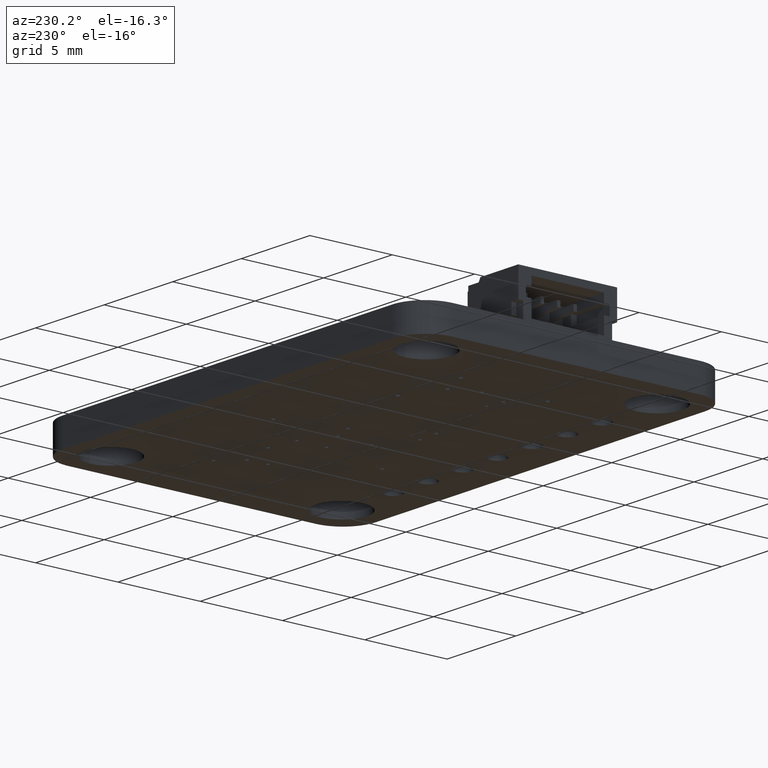
[diagram: clean part render]
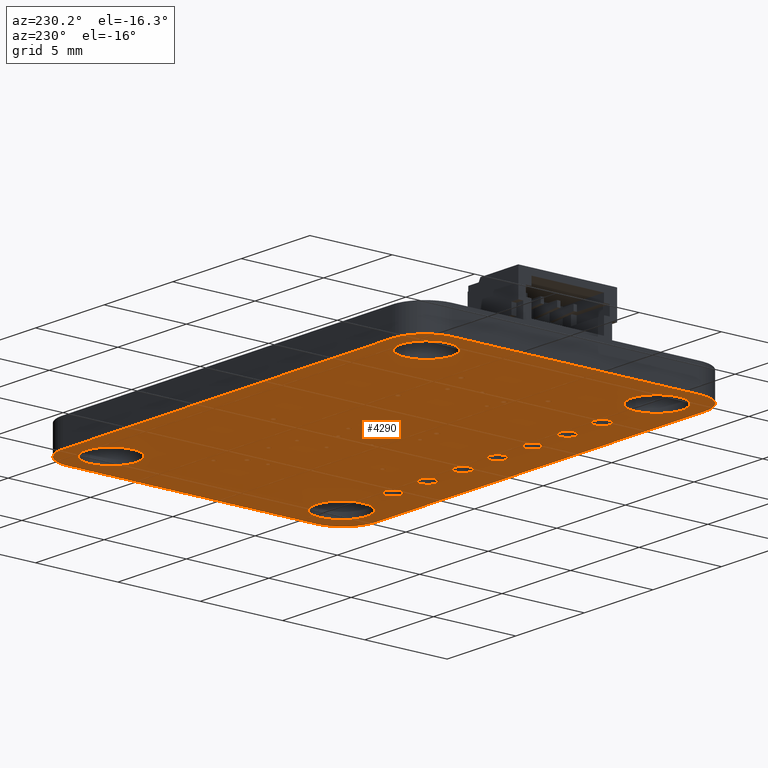
[diagram: same view with one face highlighted and labeled with its STEP entity id]
A machine part, auxiliary view. The second image highlights one B-rep face of the part: STEP entity #4290.
In plain terms, the highlighted planar face has unit normal (0, 0, -1).
Its self-contained STEP definition (entity closure, byte-faithful):
#107 = VERTEX_POINT('',#108);
#108 = CARTESIAN_POINT('',(26.,0.E+000,-0.82));
#125 = VERTEX_POINT('',#126);
#126 = CARTESIAN_POINT('',(2.,0.E+000,-0.82));
#132 = EDGE_CURVE('',#107,#125,#133,.T.);
#133 = LINE('',#134,#135);
#134 = CARTESIAN_POINT('',(26.,0.E+000,-0.82));
#135 = VECTOR('',#136,1.);
#136 = DIRECTION('',(-1.,0.E+000,0.E+000));
#147 = VERTEX_POINT('',#148);
#148 = CARTESIAN_POINT('',(26.20786,-1.01E-002,-0.82));
#163 = EDGE_CURVE('',#147,#107,#164,.T.);
#164 = LINE('',#165,#166);
#165 = CARTESIAN_POINT('',(26.20786,-1.01E-002,-0.82));
#166 = VECTOR('',#167,1.);
#167 = DIRECTION('',(-0.998821572954,4.853313714442E-002,0.E+000));
#187 = VERTEX_POINT('',#188);
#188 = CARTESIAN_POINT('',(1.79214,-1.01E-002,-0.82));
#194 = EDGE_CURVE('',#125,#187,#195,.T.);
#195 = LINE('',#196,#197);
#196 = CARTESIAN_POINT('',(2.,0.E+000,-0.82));
#197 = VECTOR('',#198,1.);
#198 = DIRECTION('',(-0.998821572954,-4.853313714442E-002,0.E+000));
#209 = VERTEX_POINT('',#210);
#210 = CARTESIAN_POINT('',(26.40894,-3.979E-002,-0.82));
#225 = EDGE_CURVE('',#209,#147,#226,.T.);
#226 = LINE('',#227,#228);
#227 = CARTESIAN_POINT('',(26.40894,-3.979E-002,-0.82));
#228 = VECTOR('',#229,1.);
#229 = DIRECTION('',(-0.989274402589,0.146069012397,0.E+000));
#249 = VERTEX_POINT('',#250);
#250 = CARTESIAN_POINT('',(1.59106,-3.979E-002,-0.82));
#256 = EDGE_CURVE('',#187,#249,#257,.T.);
#257 = LINE('',#258,#259);
#258 = CARTESIAN_POINT('',(1.79214,-1.01E-002,-0.82));
#259 = VECTOR('',#260,1.);
#260 = DIRECTION('',(-0.989274402589,-0.146069012397,0.E+000));
#271 = VERTEX_POINT('',#272);
#272 = CARTESIAN_POINT('',(26.60233,-8.817E-002,-0.82));
#287 = EDGE_CURVE('',#271,#209,#288,.T.);
#288 = LINE('',#289,#290);
#289 = CARTESIAN_POINT('',(26.60233,-8.817E-002,-0.82));
#290 = VECTOR('',#291,1.);
#291 = DIRECTION('',(-0.970104127996,0.242689062063,0.E+000));
#311 = VERTEX_POINT('',#312);
#312 = CARTESIAN_POINT('',(1.39767,-8.817E-002,-0.82));
#318 = EDGE_CURVE('',#249,#311,#319,.T.);
#319 = LINE('',#320,#321);
#320 = CARTESIAN_POINT('',(1.59106,-3.979E-002,-0.82));
#321 = VECTOR('',#322,1.);
#322 = DIRECTION('',(-0.970104127996,-0.242689062063,0.E+000));
#333 = VERTEX_POINT('',#334);
#334 = CARTESIAN_POINT('',(26.78711,-0.1543,-0.82));
#349 = EDGE_CURVE('',#333,#271,#350,.T.);
#350 = LINE('',#351,#352);
#351 = CARTESIAN_POINT('',(26.78711,-0.1543,-0.82));
#352 = VECTOR('',#353,1.);
#353 = DIRECTION('',(-0.941520370828,0.336956067339,0.E+000));
#373 = VERTEX_POINT('',#374);
#374 = CARTESIAN_POINT('',(1.21289,-0.1543,-0.82));
#380 = EDGE_CURVE('',#311,#373,#381,.T.);
#381 = LINE('',#382,#383);
#382 = CARTESIAN_POINT('',(1.39767,-8.817E-002,-0.82));
#383 = VECTOR('',#384,1.);
#384 = DIRECTION('',(-0.941520370828,-0.336956067339,0.E+000));
#395 = VERTEX_POINT('',#396);
#396 = CARTESIAN_POINT('',(26.96237,-0.23727,-0.82));
#411 = EDGE_CURVE('',#395,#333,#412,.T.);
#412 = LINE('',#413,#414);
#413 = CARTESIAN_POINT('',(26.96237,-0.23727,-0.82));
#414 = VECTOR('',#415,1.);
#415 = DIRECTION('',(-0.90383337441,0.42788460045,0.E+000));
#435 = VERTEX_POINT('',#436);
#436 = CARTESIAN_POINT('',(1.03763,-0.23727,-0.82));
#442 = EDGE_CURVE('',#373,#435,#443,.T.);
#443 = LINE('',#444,#445);
#444 = CARTESIAN_POINT('',(1.21289,-0.1543,-0.82));
#445 = VECTOR('',#446,1.);
#446 = DIRECTION('',(-0.90383337441,-0.42788460045,0.E+000));
#457 = VERTEX_POINT('',#458);
#458 = CARTESIAN_POINT('',(27.1272,-0.33618,-0.82));
#473 = EDGE_CURVE('',#457,#395,#474,.T.);
#474 = LINE('',#475,#476);
#475 = CARTESIAN_POINT('',(27.1272,-0.33618,-0.82));
#476 = VECTOR('',#477,1.);
#477 = DIRECTION('',(-0.857465383851,0.514541655746,0.E+000));
#497 = VERTEX_POINT('',#498);
#498 = CARTESIAN_POINT('',(0.8728,-0.33618,-0.82));
#504 = EDGE_CURVE('',#435,#497,#505,.T.);
#505 = LINE('',#506,#507);
#506 = CARTESIAN_POINT('',(1.03763,-0.23727,-0.82));
#507 = VECTOR('',#508,1.);
#508 = DIRECTION('',(-0.857465383851,-0.514541655746,0.E+000));
#519 = VERTEX_POINT('',#520);
#520 = CARTESIAN_POINT('',(27.28067,-0.4501,-0.82));
#535 = EDGE_CURVE('',#519,#457,#536,.T.);
#536 = LINE('',#537,#538);
#537 = CARTESIAN_POINT('',(27.28067,-0.4501,-0.82));
#538 = VECTOR('',#539,1.);
#539 = DIRECTION('',(-0.802959902094,0.596033049108,0.E+000));
#559 = VERTEX_POINT('',#560);
#560 = CARTESIAN_POINT('',(0.71933,-0.4501,-0.82));
#566 = EDGE_CURVE('',#497,#559,#567,.T.);
#567 = LINE('',#568,#569);
#568 = CARTESIAN_POINT('',(0.8728,-0.33618,-0.82));
#569 = VECTOR('',#570,1.);
#570 = DIRECTION('',(-0.802959902094,-0.596033049108,0.E+000));
#581 = VERTEX_POINT('',#582);
#582 = CARTESIAN_POINT('',(27.42188,-0.57812,-0.82));
#597 = EDGE_CURVE('',#581,#519,#598,.T.);
#598 = LINE('',#599,#600);
#599 = CARTESIAN_POINT('',(27.42188,-0.57812,-0.82));
#600 = VECTOR('',#601,1.);
#601 = DIRECTION('',(-0.740860487423,0.671658944833,0.E+000));
#621 = VERTEX_POINT('',#622);
#622 = CARTESIAN_POINT('',(0.57812,-0.57812,-0.82));
#628 = EDGE_CURVE('',#559,#621,#629,.T.);
#629 = LINE('',#630,#631);
#630 = CARTESIAN_POINT('',(0.71933,-0.4501,-0.82));
#631 = VECTOR('',#632,1.);
#632 = DIRECTION('',(-0.740860487423,-0.671658944833,0.E+000));
#643 = VERTEX_POINT('',#644);
#644 = CARTESIAN_POINT('',(27.5499,-0.71933,-0.82));
#659 = EDGE_CURVE('',#643,#581,#660,.T.);
#660 = LINE('',#661,#662);
#661 = CARTESIAN_POINT('',(27.5499,-0.71933,-0.82));
#662 = VECTOR('',#663,1.);
#663 = DIRECTION('',(-0.671658944833,0.740860487423,0.E+000));
#683 = VERTEX_POINT('',#684);
#684 = CARTESIAN_POINT('',(0.4501,-0.71933,-0.82));
#690 = EDGE_CURVE('',#621,#683,#691,.T.);
#691 = LINE('',#692,#693);
#692 = CARTESIAN_POINT('',(0.57812,-0.57812,-0.82));
#693 = VECTOR('',#694,1.);
#694 = DIRECTION('',(-0.671658944833,-0.740860487423,0.E+000));
#705 = VERTEX_POINT('',#706);
#706 = CARTESIAN_POINT('',(27.66382,-0.8728,-0.82));
#721 = EDGE_CURVE('',#705,#643,#722,.T.);
#722 = LINE('',#723,#724);
#723 = CARTESIAN_POINT('',(27.66382,-0.8728,-0.82));
#724 = VECTOR('',#725,1.);
#725 = DIRECTION('',(-0.596033049108,0.802959902094,0.E+000));
#745 = VERTEX_POINT('',#746);
#746 = CARTESIAN_POINT('',(0.33618,-0.8728,-0.82));
#752 = EDGE_CURVE('',#683,#745,#753,.T.);
#753 = LINE('',#754,#755);
#754 = CARTESIAN_POINT('',(0.4501,-0.71933,-0.82));
#755 = VECTOR('',#756,1.);
#756 = DIRECTION('',(-0.596033049108,-0.802959902094,0.E+000));
#767 = VERTEX_POINT('',#768);
#768 = CARTESIAN_POINT('',(27.76273,-1.03763,-0.82));
#783 = EDGE_CURVE('',#767,#705,#784,.T.);
#784 = LINE('',#785,#786);
#785 = CARTESIAN_POINT('',(27.76273,-1.03763,-0.82));
#786 = VECTOR('',#787,1.);
#787 = DIRECTION('',(-0.514541655746,0.857465383851,0.E+000));
#807 = VERTEX_POINT('',#808);
#808 = CARTESIAN_POINT('',(0.23727,-1.03763,-0.82));
#814 = EDGE_CURVE('',#745,#807,#815,.T.);
#815 = LINE('',#816,#817);
#816 = CARTESIAN_POINT('',(0.33618,-0.8728,-0.82));
#817 = VECTOR('',#818,1.);
#818 = DIRECTION('',(-0.514541655746,-0.857465383851,0.E+000));
#829 = VERTEX_POINT('',#830);
#830 = CARTESIAN_POINT('',(27.8457,-1.21289,-0.82));
#845 = EDGE_CURVE('',#829,#767,#846,.T.);
#846 = LINE('',#847,#848);
#847 = CARTESIAN_POINT('',(27.8457,-1.21289,-0.82));
#848 = VECTOR('',#849,1.);
#849 = DIRECTION('',(-0.42788460045,0.90383337441,0.E+000));
#869 = VERTEX_POINT('',#870);
#870 = CARTESIAN_POINT('',(0.1543,-1.21289,-0.82));
#876 = EDGE_CURVE('',#807,#869,#877,.T.);
#877 = LINE('',#878,#879);
#878 = CARTESIAN_POINT('',(0.23727,-1.03763,-0.82));
#879 = VECTOR('',#880,1.);
#880 = DIRECTION('',(-0.42788460045,-0.90383337441,0.E+000));
#891 = VERTEX_POINT('',#892);
#892 = CARTESIAN_POINT('',(27.91183,-1.39767,-0.82));
#907 = EDGE_CURVE('',#891,#829,#908,.T.);
#908 = LINE('',#909,#910);
#909 = CARTESIAN_POINT('',(27.91183,-1.39767,-0.82));
#910 = VECTOR('',#911,1.);
#911 = DIRECTION('',(-0.336956067339,0.941520370828,0.E+000));
#931 = VERTEX_POINT('',#932);
#932 = CARTESIAN_POINT('',(8.817E-002,-1.39767,-0.82));
#938 = EDGE_CURVE('',#869,#931,#939,.T.);
#939 = LINE('',#940,#941);
#940 = CARTESIAN_POINT('',(0.1543,-1.21289,-0.82));
#941 = VECTOR('',#942,1.);
#942 = DIRECTION('',(-0.336956067339,-0.941520370828,0.E+000));
#953 = VERTEX_POINT('',#954);
#954 = CARTESIAN_POINT('',(27.9602,-1.59106,-0.82));
#969 = EDGE_CURVE('',#953,#891,#970,.T.);
#970 = LINE('',#971,#972);
#971 = CARTESIAN_POINT('',(27.9602,-1.59106,-0.82));
#972 = VECTOR('',#973,1.);
#973 = DIRECTION('',(-0.24264185261,0.970115937073,0.E+000));
#993 = VERTEX_POINT('',#994);
#994 = CARTESIAN_POINT('',(3.98E-002,-1.59106,-0.82));
#1000 = EDGE_CURVE('',#931,#993,#1001,.T.);
#1001 = LINE('',#1002,#1003);
#1002 = CARTESIAN_POINT('',(8.817E-002,-1.39767,-0.82));
#1003 = VECTOR('',#1004,1.);
#1004 = DIRECTION('',(-0.24264185261,-0.970115937073,0.E+000));
#1015 = VERTEX_POINT('',#1016);
#1016 = CARTESIAN_POINT('',(27.9899,-1.79214,-0.82));
#1031 = EDGE_CURVE('',#1015,#953,#1032,.T.);
#1032 = LINE('',#1033,#1034);
#1033 = CARTESIAN_POINT('',(27.9899,-1.79214,-0.82));
#1034 = VECTOR('',#1035,1.);
#1035 = DIRECTION('',(-0.146117160232,0.989267292235,0.E+000));
#1055 = VERTEX_POINT('',#1056);
#1056 = CARTESIAN_POINT('',(1.01E-002,-1.79214,-0.82));
#1062 = EDGE_CURVE('',#993,#1055,#1063,.T.);
#1063 = LINE('',#1064,#1065);
#1064 = CARTESIAN_POINT('',(3.98E-002,-1.59106,-0.82));
#1065 = VECTOR('',#1066,1.);
#1066 = DIRECTION('',(-0.146117160232,-0.989267292235,0.E+000));
#1077 = VERTEX_POINT('',#1078);
#1078 = CARTESIAN_POINT('',(28.,-2.,-0.82));
#1093 = EDGE_CURVE('',#1077,#1015,#1094,.T.);
#1094 = LINE('',#1095,#1096);
#1095 = CARTESIAN_POINT('',(28.,-2.,-0.82));
#1096 = VECTOR('',#1097,1.);
#1097 = DIRECTION('',(-4.853313714442E-002,0.998821572954,0.E+000));
#1117 = VERTEX_POINT('',#1118);
#1118 = CARTESIAN_POINT('',(0.E+000,-2.,-0.82));
#1124 = EDGE_CURVE('',#1055,#1117,#1125,.T.);
#1125 = LINE('',#1126,#1127);
#1126 = CARTESIAN_POINT('',(1.01E-002,-1.79214,-0.82));
#1127 = VECTOR('',#1128,1.);
#1128 = DIRECTION('',(-4.853313714442E-002,-0.998821572954,0.E+000));
#1139 = VERTEX_POINT('',#1140);
#1140 = CARTESIAN_POINT('',(28.,-17.,-0.82));
#1155 = EDGE_CURVE('',#1139,#1077,#1156,.T.);
#1156 = LINE('',#1157,#1158);
#1157 = CARTESIAN_POINT('',(28.,-17.,-0.82));
#1158 = VECTOR('',#1159,1.);
#1159 = DIRECTION('',(0.E+000,1.,0.E+000));
#1179 = VERTEX_POINT('',#1180);
#1180 = CARTESIAN_POINT('',(0.E+000,-17.,-0.82));
#1186 = EDGE_CURVE('',#1117,#1179,#1187,.T.);
#1187 = LINE('',#1188,#1189);
#1188 = CARTESIAN_POINT('',(0.E+000,-2.,-0.82));
#1189 = VECTOR('',#1190,1.);
#1190 = DIRECTION('',(0.E+000,-1.,0.E+000));
#1201 = VERTEX_POINT('',#1202);
#1202 = CARTESIAN_POINT('',(27.9899,-17.20786,-0.82));
#1217 = EDGE_CURVE('',#1201,#1139,#1218,.T.);
#1218 = LINE('',#1219,#1220);
#1219 = CARTESIAN_POINT('',(27.9899,-17.20786,-0.82));
#1220 = VECTOR('',#1221,1.);
#1221 = DIRECTION('',(4.853313714442E-002,0.998821572954,0.E+000));
#1241 = VERTEX_POINT('',#1242);
#1242 = CARTESIAN_POINT('',(1.01E-002,-17.20786,-0.82));
#1248 = EDGE_CURVE('',#1179,#1241,#1249,.T.);
#1249 = LINE('',#1250,#1251);
#1250 = CARTESIAN_POINT('',(0.E+000,-17.,-0.82));
#1251 = VECTOR('',#1252,1.);
#1252 = DIRECTION('',(4.853313714442E-002,-0.998821572954,0.E+000));
#1263 = VERTEX_POINT('',#1264);
#1264 = CARTESIAN_POINT('',(27.9602,-17.40894,-0.82));
#1279 = EDGE_CURVE('',#1263,#1201,#1280,.T.);
#1280 = LINE('',#1281,#1282);
#1281 = CARTESIAN_POINT('',(27.9602,-17.40894,-0.82));
#1282 = VECTOR('',#1283,1.);
#1283 = DIRECTION('',(0.146117160232,0.989267292235,0.E+000));
#1303 = VERTEX_POINT('',#1304);
#1304 = CARTESIAN_POINT('',(3.98E-002,-17.40894,-0.82));
#1310 = EDGE_CURVE('',#1241,#1303,#1311,.T.);
#1311 = LINE('',#1312,#1313);
#1312 = CARTESIAN_POINT('',(1.01E-002,-17.20786,-0.82));
#1313 = VECTOR('',#1314,1.);
#1314 = DIRECTION('',(0.146117160232,-0.989267292235,0.E+000));
#1325 = VERTEX_POINT('',#1326);
#1326 = CARTESIAN_POINT('',(27.91183,-17.60233,-0.82));
#1341 = EDGE_CURVE('',#1325,#1263,#1342,.T.);
#1342 = LINE('',#1343,#1344);
#1343 = CARTESIAN_POINT('',(27.91183,-17.60233,-0.82));
#1344 = VECTOR('',#1345,1.);
#1345 = DIRECTION('',(0.24264185261,0.970115937073,0.E+000));
#1365 = VERTEX_POINT('',#1366);
#1366 = CARTESIAN_POINT('',(8.817E-002,-17.60233,-0.82));
#1372 = EDGE_CURVE('',#1303,#1365,#1373,.T.);
#1373 = LINE('',#1374,#1375);
#1374 = CARTESIAN_POINT('',(3.98E-002,-17.40894,-0.82));
#1375 = VECTOR('',#1376,1.);
#1376 = DIRECTION('',(0.24264185261,-0.970115937073,0.E+000));
#1387 = VERTEX_POINT('',#1388);
#1388 = CARTESIAN_POINT('',(27.8457,-17.78711,-0.82));
#1403 = EDGE_CURVE('',#1387,#1325,#1404,.T.);
#1404 = LINE('',#1405,#1406);
#1405 = CARTESIAN_POINT('',(27.8457,-17.78711,-0.82));
#1406 = VECTOR('',#1407,1.);
#1407 = DIRECTION('',(0.336956067339,0.941520370828,0.E+000));
#1427 = VERTEX_POINT('',#1428);
#1428 = CARTESIAN_POINT('',(0.1543,-17.78711,-0.82));
#1434 = EDGE_CURVE('',#1365,#1427,#1435,.T.);
#1435 = LINE('',#1436,#1437);
#1436 = CARTESIAN_POINT('',(8.817E-002,-17.60233,-0.82));
#1437 = VECTOR('',#1438,1.);
#1438 = DIRECTION('',(0.336956067339,-0.941520370828,0.E+000));
#1449 = VERTEX_POINT('',#1450);
#1450 = CARTESIAN_POINT('',(27.76273,-17.96237,-0.82));
#1465 = EDGE_CURVE('',#1449,#1387,#1466,.T.);
#1466 = LINE('',#1467,#1468);
#1467 = CARTESIAN_POINT('',(27.76273,-17.96237,-0.82));
#1468 = VECTOR('',#1469,1.);
#1469 = DIRECTION('',(0.42788460045,0.90383337441,0.E+000));
#1489 = VERTEX_POINT('',#1490);
#1490 = CARTESIAN_POINT('',(0.23727,-17.96237,-0.82));
#1496 = EDGE_CURVE('',#1427,#1489,#1497,.T.);
#1497 = LINE('',#1498,#1499);
#1498 = CARTESIAN_POINT('',(0.1543,-17.78711,-0.82));
#1499 = VECTOR('',#1500,1.);
#1500 = DIRECTION('',(0.42788460045,-0.90383337441,0.E+000));
#1511 = VERTEX_POINT('',#1512);
#1512 = CARTESIAN_POINT('',(27.66382,-18.1272,-0.82));
#1527 = EDGE_CURVE('',#1511,#1449,#1528,.T.);
#1528 = LINE('',#1529,#1530);
#1529 = CARTESIAN_POINT('',(27.66382,-18.1272,-0.82));
#1530 = VECTOR('',#1531,1.);
#1531 = DIRECTION('',(0.514541655746,0.857465383851,0.E+000));
#1551 = VERTEX_POINT('',#1552);
#1552 = CARTESIAN_POINT('',(0.33618,-18.1272,-0.82));
#1558 = EDGE_CURVE('',#1489,#1551,#1559,.T.);
#1559 = LINE('',#1560,#1561);
#1560 = CARTESIAN_POINT('',(0.23727,-17.96237,-0.82));
#1561 = VECTOR('',#1562,1.);
#1562 = DIRECTION('',(0.514541655746,-0.857465383851,0.E+000));
#1573 = VERTEX_POINT('',#1574);
#1574 = CARTESIAN_POINT('',(27.5499,-18.28067,-0.82));
#1589 = EDGE_CURVE('',#1573,#1511,#1590,.T.);
#1590 = LINE('',#1591,#1592);
#1591 = CARTESIAN_POINT('',(27.5499,-18.28067,-0.82));
#1592 = VECTOR('',#1593,1.);
#1593 = DIRECTION('',(0.596033049108,0.802959902094,0.E+000));
#1613 = VERTEX_POINT('',#1614);
#1614 = CARTESIAN_POINT('',(0.4501,-18.28067,-0.82));
#1620 = EDGE_CURVE('',#1551,#1613,#1621,.T.);
#1621 = LINE('',#1622,#1623);
#1622 = CARTESIAN_POINT('',(0.33618,-18.1272,-0.82));
#1623 = VECTOR('',#1624,1.);
#1624 = DIRECTION('',(0.596033049108,-0.802959902094,0.E+000));
#1635 = VERTEX_POINT('',#1636);
#1636 = CARTESIAN_POINT('',(27.42188,-18.42188,-0.82));
#1651 = EDGE_CURVE('',#1635,#1573,#1652,.T.);
#1652 = LINE('',#1653,#1654);
#1653 = CARTESIAN_POINT('',(27.42188,-18.42188,-0.82));
#1654 = VECTOR('',#1655,1.);
#1655 = DIRECTION('',(0.671658944833,0.740860487423,0.E+000));
#1675 = VERTEX_POINT('',#1676);
#1676 = CARTESIAN_POINT('',(0.57812,-18.42188,-0.82));
#1682 = EDGE_CURVE('',#1613,#1675,#1683,.T.);
#1683 = LINE('',#1684,#1685);
#1684 = CARTESIAN_POINT('',(0.4501,-18.28067,-0.82));
#1685 = VECTOR('',#1686,1.);
#1686 = DIRECTION('',(0.671658944833,-0.740860487423,0.E+000));
#1697 = VERTEX_POINT('',#1698);
#1698 = CARTESIAN_POINT('',(27.28067,-18.5499,-0.82));
#1713 = EDGE_CURVE('',#1697,#1635,#1714,.T.);
#1714 = LINE('',#1715,#1716);
#1715 = CARTESIAN_POINT('',(27.28067,-18.5499,-0.82));
#1716 = VECTOR('',#1717,1.);
#1717 = DIRECTION('',(0.740860487423,0.671658944833,0.E+000));
#1737 = VERTEX_POINT('',#1738);
#1738 = CARTESIAN_POINT('',(0.71933,-18.5499,-0.82));
#1744 = EDGE_CURVE('',#1675,#1737,#1745,.T.);
#1745 = LINE('',#1746,#1747);
#1746 = CARTESIAN_POINT('',(0.57812,-18.42188,-0.82));
#1747 = VECTOR('',#1748,1.);
#1748 = DIRECTION('',(0.740860487423,-0.671658944833,0.E+000));
#1759 = VERTEX_POINT('',#1760);
#1760 = CARTESIAN_POINT('',(27.1272,-18.66382,-0.82));
#1775 = EDGE_CURVE('',#1759,#1697,#1776,.T.);
#1776 = LINE('',#1777,#1778);
#1777 = CARTESIAN_POINT('',(27.1272,-18.66382,-0.82));
#1778 = VECTOR('',#1779,1.);
#1779 = DIRECTION('',(0.802959902094,0.596033049108,0.E+000));
#1799 = VERTEX_POINT('',#1800);
#1800 = CARTESIAN_POINT('',(0.8728,-18.66382,-0.82));
#1806 = EDGE_CURVE('',#1737,#1799,#1807,.T.);
#1807 = LINE('',#1808,#1809);
#1808 = CARTESIAN_POINT('',(0.71933,-18.5499,-0.82));
#1809 = VECTOR('',#1810,1.);
#1810 = DIRECTION('',(0.802959902094,-0.596033049108,0.E+000));
#1821 = VERTEX_POINT('',#1822);
#1822 = CARTESIAN_POINT('',(26.96237,-18.76273,-0.82));
#1837 = EDGE_CURVE('',#1821,#1759,#1838,.T.);
#1838 = LINE('',#1839,#1840);
#1839 = CARTESIAN_POINT('',(26.96237,-18.76273,-0.82));
#1840 = VECTOR('',#1841,1.);
#1841 = DIRECTION('',(0.857465383851,0.514541655746,0.E+000));
#1861 = VERTEX_POINT('',#1862);
#1862 = CARTESIAN_POINT('',(1.03763,-18.76273,-0.82));
#1868 = EDGE_CURVE('',#1799,#1861,#1869,.T.);
#1869 = LINE('',#1870,#1871);
#1870 = CARTESIAN_POINT('',(0.8728,-18.66382,-0.82));
#1871 = VECTOR('',#1872,1.);
#1872 = DIRECTION('',(0.857465383851,-0.514541655746,0.E+000));
#1883 = VERTEX_POINT('',#1884);
#1884 = CARTESIAN_POINT('',(26.78711,-18.8457,-0.82));
#1899 = EDGE_CURVE('',#1883,#1821,#1900,.T.);
#1900 = LINE('',#1901,#1902);
#1901 = CARTESIAN_POINT('',(26.78711,-18.8457,-0.82));
#1902 = VECTOR('',#1903,1.);
#1903 = DIRECTION('',(0.90383337441,0.42788460045,0.E+000));
#1923 = VERTEX_POINT('',#1924);
#1924 = CARTESIAN_POINT('',(1.21289,-18.8457,-0.82));
#1930 = EDGE_CURVE('',#1861,#1923,#1931,.T.);
#1931 = LINE('',#1932,#1933);
#1932 = CARTESIAN_POINT('',(1.03763,-18.76273,-0.82));
#1933 = VECTOR('',#1934,1.);
#1934 = DIRECTION('',(0.90383337441,-0.42788460045,0.E+000));
#1945 = VERTEX_POINT('',#1946);
#1946 = CARTESIAN_POINT('',(26.60233,-18.91183,-0.82));
#1961 = EDGE_CURVE('',#1945,#1883,#1962,.T.);
#1962 = LINE('',#1963,#1964);
#1963 = CARTESIAN_POINT('',(26.60233,-18.91183,-0.82));
#1964 = VECTOR('',#1965,1.);
#1965 = DIRECTION('',(0.941520370828,0.336956067339,0.E+000));
#1985 = VERTEX_POINT('',#1986);
#1986 = CARTESIAN_POINT('',(1.39767,-18.91183,-0.82));
#1992 = EDGE_CURVE('',#1923,#1985,#1993,.T.);
#1993 = LINE('',#1994,#1995);
#1994 = CARTESIAN_POINT('',(1.21289,-18.8457,-0.82));
#1995 = VECTOR('',#1996,1.);
#1996 = DIRECTION('',(0.941520370828,-0.336956067339,0.E+000));
#2007 = VERTEX_POINT('',#2008);
#2008 = CARTESIAN_POINT('',(26.40894,-18.96021,-0.82));
#2023 = EDGE_CURVE('',#2007,#1945,#2024,.T.);
#2024 = LINE('',#2025,#2026);
#2025 = CARTESIAN_POINT('',(26.40894,-18.96021,-0.82));
#2026 = VECTOR('',#2027,1.);
#2027 = DIRECTION('',(0.970104127996,0.242689062063,0.E+000));
#2047 = VERTEX_POINT('',#2048);
#2048 = CARTESIAN_POINT('',(1.59106,-18.96021,-0.82));
#2054 = EDGE_CURVE('',#1985,#2047,#2055,.T.);
#2055 = LINE('',#2056,#2057);
#2056 = CARTESIAN_POINT('',(1.39767,-18.91183,-0.82));
#2057 = VECTOR('',#2058,1.);
#2058 = DIRECTION('',(0.970104127996,-0.242689062063,0.E+000));
#2069 = VERTEX_POINT('',#2070);
#2070 = CARTESIAN_POINT('',(26.20786,-18.9899,-0.82));
#2085 = EDGE_CURVE('',#2069,#2007,#2086,.T.);
#2086 = LINE('',#2087,#2088);
#2087 = CARTESIAN_POINT('',(26.20786,-18.9899,-0.82));
#2088 = VECTOR('',#2089,1.);
#2089 = DIRECTION('',(0.989274402589,0.146069012397,0.E+000));
#2109 = VERTEX_POINT('',#2110);
#2110 = CARTESIAN_POINT('',(1.79214,-18.9899,-0.82));
#2116 = EDGE_CURVE('',#2047,#2109,#2117,.T.);
#2117 = LINE('',#2118,#2119);
#2118 = CARTESIAN_POINT('',(1.59106,-18.96021,-0.82));
#2119 = VECTOR('',#2120,1.);
#2120 = DIRECTION('',(0.989274402589,-0.146069012397,0.E+000));
#2131 = VERTEX_POINT('',#2132);
#2132 = CARTESIAN_POINT('',(26.,-19.,-0.82));
#2147 = EDGE_CURVE('',#2131,#2069,#2148,.T.);
#2148 = LINE('',#2149,#2150);
#2149 = CARTESIAN_POINT('',(26.,-19.,-0.82));
#2150 = VECTOR('',#2151,1.);
#2151 = DIRECTION('',(0.998821572954,4.853313714441E-002,0.E+000));
#2171 = VERTEX_POINT('',#2172);
#2172 = CARTESIAN_POINT('',(2.,-19.,-0.82));
#2178 = EDGE_CURVE('',#2109,#2171,#2179,.T.);
#2179 = LINE('',#2180,#2181);
#2180 = CARTESIAN_POINT('',(1.79214,-18.9899,-0.82));
#2181 = VECTOR('',#2182,1.);
#2182 = DIRECTION('',(0.998821572954,-4.853313714441E-002,0.E+000));
#2200 = EDGE_CURVE('',#2171,#2131,#2201,.T.);
#2201 = LINE('',#2202,#2203);
#2202 = CARTESIAN_POINT('',(2.,-19.,-0.82));
#2203 = VECTOR('',#2204,1.);
#2204 = DIRECTION('',(1.,0.E+000,0.E+000));
#2214 = EDGE_CURVE('',#2215,#2217,#2219,.T.);
#2215 = VERTEX_POINT('',#2216);
#2216 = CARTESIAN_POINT('',(8.532,-16.5,-0.82));
#2217 = VERTEX_POINT('',#2218);
#2218 = CARTESIAN_POINT('',(9.548,-16.5,-0.82));
#2219 = CIRCLE('',#2220,0.508);
#2220 = AXIS2_PLACEMENT_3D('',#2221,#2222,#2223);
#2221 = CARTESIAN_POINT('',(9.04,-16.5,-0.82));
#2222 = DIRECTION('',(0.E+000,0.E+000,1.));
#2223 = DIRECTION('',(1.,0.E+000,-0.E+000));
#2263 = EDGE_CURVE('',#2217,#2215,#2264,.T.);
#2264 = CIRCLE('',#2265,0.508);
#2265 = AXIS2_PLACEMENT_3D('',#2266,#2267,#2268);
#2266 = CARTESIAN_POINT('',(9.04,-16.5,-0.82));
#2267 = DIRECTION('',(0.E+000,0.E+000,1.));
#2268 = DIRECTION('',(1.,0.E+000,-0.E+000));
#2279 = EDGE_CURVE('',#2280,#2282,#2284,.T.);
#2280 = VERTEX_POINT('',#2281);
#2281 = CARTESIAN_POINT('',(7.71168,-10.63026,-0.82));
#2282 = VERTEX_POINT('',#2283);
#2283 = CARTESIAN_POINT('',(7.96168,-10.63026,-0.82));
#2284 = CIRCLE('',#2285,0.125);
#2285 = AXIS2_PLACEMENT_3D('',#2286,#2287,#2288);
#2286 = CARTESIAN_POINT('',(7.83668,-10.63026,-0.82));
#2287 = DIRECTION('',(0.E+000,0.E+000,1.));
#2288 = DIRECTION('',(1.,0.E+000,-0.E+000));
#2328 = EDGE_CURVE('',#2282,#2280,#2329,.T.);
#2329 = CIRCLE('',#2330,0.125);
#2330 = AXIS2_PLACEMENT_3D('',#2331,#2332,#2333);
#2331 = CARTESIAN_POINT('',(7.83668,-10.63026,-0.82));
#2332 = DIRECTION('',(0.E+000,0.E+000,1.));
#2333 = DIRECTION('',(1.,0.E+000,-0.E+000));
#2344 = EDGE_CURVE('',#2345,#2347,#2349,.T.);
#2345 = VERTEX_POINT('',#2346);
#2346 = CARTESIAN_POINT('',(12.69117,-11.7514,-0.82));
#2347 = VERTEX_POINT('',#2348);
#2348 = CARTESIAN_POINT('',(12.99597,-11.7514,-0.82));
#2349 = CIRCLE('',#2350,0.1524);
#2350 = AXIS2_PLACEMENT_3D('',#2351,#2352,#2353);
#2351 = CARTESIAN_POINT('',(12.84357,-11.7514,-0.82));
#2352 = DIRECTION('',(0.E+000,0.E+000,1.));
#2353 = DIRECTION('',(1.,0.E+000,-0.E+000));
#2393 = EDGE_CURVE('',#2347,#2345,#2394,.T.);
#2394 = CIRCLE('',#2395,0.1524);
#2395 = AXIS2_PLACEMENT_3D('',#2396,#2397,#2398);
#2396 = CARTESIAN_POINT('',(12.84357,-11.7514,-0.82));
#2397 = DIRECTION('',(0.E+000,0.E+000,1.));
#2398 = DIRECTION('',(1.,0.E+000,-0.E+000));
#2409 = EDGE_CURVE('',#2410,#2412,#2414,.T.);
#2410 = VERTEX_POINT('',#2411);
#2411 = CARTESIAN_POINT('',(11.072,-16.5,-0.82));
#2412 = VERTEX_POINT('',#2413);
#2413 = CARTESIAN_POINT('',(12.088,-16.5,-0.82));
#2414 = CIRCLE('',#2415,0.508);
#2415 = AXIS2_PLACEMENT_3D('',#2416,#2417,#2418);
#2416 = CARTESIAN_POINT('',(11.58,-16.5,-0.82));
#2417 = DIRECTION('',(0.E+000,0.E+000,1.));
#2418 = DIRECTION('',(1.,0.E+000,-0.E+000));
#2458 = EDGE_CURVE('',#2412,#2410,#2459,.T.);
#2459 = CIRCLE('',#2460,0.508);
#2460 = AXIS2_PLACEMENT_3D('',#2461,#2462,#2463);
#2461 = CARTESIAN_POINT('',(11.58,-16.5,-0.82));
#2462 = DIRECTION('',(0.E+000,0.E+000,1.));
#2463 = DIRECTION('',(1.,0.E+000,-0.E+000));
#2474 = EDGE_CURVE('',#2475,#2477,#2479,.T.);
#2475 = VERTEX_POINT('',#2476);
#2476 = CARTESIAN_POINT('',(18.692,-16.5,-0.82));
#2477 = VERTEX_POINT('',#2478);
#2478 = CARTESIAN_POINT('',(19.708,-16.5,-0.82));
#2479 = CIRCLE('',#2480,0.508);
#2480 = AXIS2_PLACEMENT_3D('',#2481,#2482,#2483);
#2481 = CARTESIAN_POINT('',(19.2,-16.5,-0.82));
#2482 = DIRECTION('',(0.E+000,0.E+000,1.));
#2483 = DIRECTION('',(1.,0.E+000,-0.E+000));
#2523 = EDGE_CURVE('',#2477,#2475,#2524,.T.);
#2524 = CIRCLE('',#2525,0.508);
#2525 = AXIS2_PLACEMENT_3D('',#2526,#2527,#2528);
#2526 = CARTESIAN_POINT('',(19.2,-16.5,-0.82));
#2527 = DIRECTION('',(0.E+000,0.E+000,1.));
#2528 = DIRECTION('',(1.,0.E+000,-0.E+000));
#2539 = EDGE_CURVE('',#2540,#2542,#2544,.T.);
#2540 = VERTEX_POINT('',#2541);
#2541 = CARTESIAN_POINT('',(13.612,-16.5,-0.82));
#2542 = VERTEX_POINT('',#2543);
#2543 = CARTESIAN_POINT('',(14.628,-16.5,-0.82));
#2544 = CIRCLE('',#2545,0.508);
#2545 = AXIS2_PLACEMENT_3D('',#2546,#2547,#2548);
#2546 = CARTESIAN_POINT('',(14.12,-16.5,-0.82));
#2547 = DIRECTION('',(0.E+000,0.E+000,1.));
#2548 = DIRECTION('',(1.,0.E+000,-0.E+000));
#2588 = EDGE_CURVE('',#2542,#2540,#2589,.T.);
#2589 = CIRCLE('',#2590,0.508);
#2590 = AXIS2_PLACEMENT_3D('',#2591,#2592,#2593);
#2591 = CARTESIAN_POINT('',(14.12,-16.5,-0.82));
#2592 = DIRECTION('',(0.E+000,0.E+000,1.));
#2593 = DIRECTION('',(1.,0.E+000,-0.E+000));
#2604 = EDGE_CURVE('',#2605,#2607,#2609,.T.);
#2605 = VERTEX_POINT('',#2606);
#2606 = CARTESIAN_POINT('',(16.152,-16.5,-0.82));
#2607 = VERTEX_POINT('',#2608);
#2608 = CARTESIAN_POINT('',(17.168,-16.5,-0.82));
#2609 = CIRCLE('',#2610,0.508);
#2610 = AXIS2_PLACEMENT_3D('',#2611,#2612,#2613);
#2611 = CARTESIAN_POINT('',(16.66,-16.5,-0.82));
#2612 = DIRECTION('',(0.E+000,0.E+000,1.));
#2613 = DIRECTION('',(1.,0.E+000,-0.E+000));
#2653 = EDGE_CURVE('',#2607,#2605,#2654,.T.);
#2654 = CIRCLE('',#2655,0.508);
#2655 = AXIS2_PLACEMENT_3D('',#2656,#2657,#2658);
#2656 = CARTESIAN_POINT('',(16.66,-16.5,-0.82));
#2657 = DIRECTION('',(0.E+000,0.E+000,1.));
#2658 = DIRECTION('',(1.,0.E+000,-0.E+000));
#2669 = EDGE_CURVE('',#2670,#2672,#2674,.T.);
#2670 = VERTEX_POINT('',#2671);
#2671 = CARTESIAN_POINT('',(18.87182,-13.58662,-0.82));
#2672 = VERTEX_POINT('',#2673);
#2673 = CARTESIAN_POINT('',(19.12182,-13.58662,-0.82));
#2674 = CIRCLE('',#2675,0.125);
#2675 = AXIS2_PLACEMENT_3D('',#2676,#2677,#2678);
#2676 = CARTESIAN_POINT('',(18.99682,-13.58662,-0.82));
#2677 = DIRECTION('',(0.E+000,0.E+000,1.));
#2678 = DIRECTION('',(1.,0.E+000,-0.E+000));
#2718 = EDGE_CURVE('',#2672,#2670,#2719,.T.);
#2719 = CIRCLE('',#2720,0.125);
#2720 = AXIS2_PLACEMENT_3D('',#2721,#2722,#2723);
#2721 = CARTESIAN_POINT('',(18.99682,-13.58662,-0.82));
#2722 = DIRECTION('',(0.E+000,0.E+000,1.));
#2723 = DIRECTION('',(1.,0.E+000,-0.E+000));
#2734 = EDGE_CURVE('',#2735,#2737,#2739,.T.);
#2735 = VERTEX_POINT('',#2736);
#2736 = CARTESIAN_POINT('',(13.9974,-11.811,-0.82));
#2737 = VERTEX_POINT('',#2738);
#2738 = CARTESIAN_POINT('',(14.2474,-11.811,-0.82));
#2739 = CIRCLE('',#2740,0.125);
#2740 = AXIS2_PLACEMENT_3D('',#2741,#2742,#2743);
#2741 = CARTESIAN_POINT('',(14.1224,-11.811,-0.82));
#2742 = DIRECTION('',(0.E+000,0.E+000,1.));
#2743 = DIRECTION('',(1.,0.E+000,-0.E+000));
#2783 = EDGE_CURVE('',#2737,#2735,#2784,.T.);
#2784 = CIRCLE('',#2785,0.125);
#2785 = AXIS2_PLACEMENT_3D('',#2786,#2787,#2788);
#2786 = CARTESIAN_POINT('',(14.1224,-11.811,-0.82));
#2787 = DIRECTION('',(0.E+000,0.E+000,1.));
#2788 = DIRECTION('',(1.,0.E+000,-0.E+000));
#2799 = EDGE_CURVE('',#2800,#2802,#2804,.T.);
#2800 = VERTEX_POINT('',#2801);
#2801 = CARTESIAN_POINT('',(16.131,-10.6426,-0.82));
#2802 = VERTEX_POINT('',#2803);
#2803 = CARTESIAN_POINT('',(16.381,-10.6426,-0.82));
#2804 = CIRCLE('',#2805,0.125);
#2805 = AXIS2_PLACEMENT_3D('',#2806,#2807,#2808);
#2806 = CARTESIAN_POINT('',(16.256,-10.6426,-0.82));
#2807 = DIRECTION('',(0.E+000,0.E+000,1.));
#2808 = DIRECTION('',(1.,0.E+000,-0.E+000));
#2848 = EDGE_CURVE('',#2802,#2800,#2849,.T.);
#2849 = CIRCLE('',#2850,0.125);
#2850 = AXIS2_PLACEMENT_3D('',#2851,#2852,#2853);
#2851 = CARTESIAN_POINT('',(16.256,-10.6426,-0.82));
#2852 = DIRECTION('',(0.E+000,0.E+000,1.));
#2853 = DIRECTION('',(1.,0.E+000,-0.E+000));
#2864 = EDGE_CURVE('',#2865,#2867,#2869,.T.);
#2865 = VERTEX_POINT('',#2866);
#2866 = CARTESIAN_POINT('',(23.95,-16.5,-0.82));
#2867 = VERTEX_POINT('',#2868);
#2868 = CARTESIAN_POINT('',(27.05,-16.5,-0.82));
#2869 = CIRCLE('',#2870,1.55);
#2870 = AXIS2_PLACEMENT_3D('',#2871,#2872,#2873);
#2871 = CARTESIAN_POINT('',(25.5,-16.5,-0.82));
#2872 = DIRECTION('',(0.E+000,0.E+000,1.));
#2873 = DIRECTION('',(1.,0.E+000,-0.E+000));
#2913 = EDGE_CURVE('',#2867,#2865,#2914,.T.);
#2914 = CIRCLE('',#2915,1.55);
#2915 = AXIS2_PLACEMENT_3D('',#2916,#2917,#2918);
#2916 = CARTESIAN_POINT('',(25.5,-16.5,-0.82));
#2917 = DIRECTION('',(0.E+000,0.E+000,1.));
#2918 = DIRECTION('',(1.,0.E+000,-0.E+000));
#2929 = EDGE_CURVE('',#2930,#2932,#2934,.T.);
#2930 = VERTEX_POINT('',#2931);
#2931 = CARTESIAN_POINT('',(21.09778,-11.1327,-0.82));
#2932 = VERTEX_POINT('',#2933);
#2933 = CARTESIAN_POINT('',(21.34778,-11.1327,-0.82));
#2934 = CIRCLE('',#2935,0.125);
#2935 = AXIS2_PLACEMENT_3D('',#2936,#2937,#2938);
#2936 = CARTESIAN_POINT('',(21.22278,-11.1327,-0.82));
#2937 = DIRECTION('',(0.E+000,0.E+000,1.));
#2938 = DIRECTION('',(1.,0.E+000,-0.E+000));
#2978 = EDGE_CURVE('',#2932,#2930,#2979,.T.);
#2979 = CIRCLE('',#2980,0.125);
#2980 = AXIS2_PLACEMENT_3D('',#2981,#2982,#2983);
#2981 = CARTESIAN_POINT('',(21.22278,-11.1327,-0.82));
#2982 = DIRECTION('',(0.E+000,0.E+000,1.));
#2983 = DIRECTION('',(1.,0.E+000,-0.E+000));
#2994 = EDGE_CURVE('',#2995,#2997,#2999,.T.);
#2995 = VERTEX_POINT('',#2996);
#2996 = CARTESIAN_POINT('',(21.232,-16.5,-0.82));
#2997 = VERTEX_POINT('',#2998);
#2998 = CARTESIAN_POINT('',(22.248,-16.5,-0.82));
#2999 = CIRCLE('',#3000,0.508);
#3000 = AXIS2_PLACEMENT_3D('',#3001,#3002,#3003);
#3001 = CARTESIAN_POINT('',(21.74,-16.5,-0.82));
#3002 = DIRECTION('',(0.E+000,0.E+000,1.));
#3003 = DIRECTION('',(1.,0.E+000,-0.E+000));
#3043 = EDGE_CURVE('',#2997,#2995,#3044,.T.);
#3044 = CIRCLE('',#3045,0.508);
#3045 = AXIS2_PLACEMENT_3D('',#3046,#3047,#3048);
#3046 = CARTESIAN_POINT('',(21.74,-16.5,-0.82));
#3047 = DIRECTION('',(0.E+000,0.E+000,1.));
#3048 = DIRECTION('',(1.,0.E+000,-0.E+000));
#3059 = EDGE_CURVE('',#3060,#3062,#3064,.T.);
#3060 = VERTEX_POINT('',#3061);
#3061 = CARTESIAN_POINT('',(5.992,-16.5,-0.82));
#3062 = VERTEX_POINT('',#3063);
#3063 = CARTESIAN_POINT('',(7.008,-16.5,-0.82));
#3064 = CIRCLE('',#3065,0.508);
#3065 = AXIS2_PLACEMENT_3D('',#3066,#3067,#3068);
#3066 = CARTESIAN_POINT('',(6.5,-16.5,-0.82));
#3067 = DIRECTION('',(0.E+000,0.E+000,1.));
#3068 = DIRECTION('',(1.,0.E+000,-0.E+000));
#3108 = EDGE_CURVE('',#3062,#3060,#3109,.T.);
#3109 = CIRCLE('',#3110,0.508);
#3110 = AXIS2_PLACEMENT_3D('',#3111,#3112,#3113);
#3111 = CARTESIAN_POINT('',(6.5,-16.5,-0.82));
#3112 = DIRECTION('',(0.E+000,0.E+000,1.));
#3113 = DIRECTION('',(1.,0.E+000,-0.E+000));
#3124 = EDGE_CURVE('',#3125,#3127,#3129,.T.);
#3125 = VERTEX_POINT('',#3126);
#3126 = CARTESIAN_POINT('',(6.65784,-10.8009,-0.82));
#3127 = VERTEX_POINT('',#3128);
#3128 = CARTESIAN_POINT('',(6.96264,-10.8009,-0.82));
#3129 = CIRCLE('',#3130,0.1524);
#3130 = AXIS2_PLACEMENT_3D('',#3131,#3132,#3133);
#3131 = CARTESIAN_POINT('',(6.81024,-10.8009,-0.82));
#3132 = DIRECTION('',(0.E+000,0.E+000,1.));
#3133 = DIRECTION('',(1.,0.E+000,-0.E+000));
#3173 = EDGE_CURVE('',#3127,#3125,#3174,.T.);
#3174 = CIRCLE('',#3175,0.1524);
#3175 = AXIS2_PLACEMENT_3D('',#3176,#3177,#3178);
#3176 = CARTESIAN_POINT('',(6.81024,-10.8009,-0.82));
#3177 = DIRECTION('',(0.E+000,0.E+000,1.));
#3178 = DIRECTION('',(1.,0.E+000,-0.E+000));
#3189 = EDGE_CURVE('',#3190,#3192,#3194,.T.);
#3190 = VERTEX_POINT('',#3191);
#3191 = CARTESIAN_POINT('',(17.782,-7.493,-0.82));
#3192 = VERTEX_POINT('',#3193);
#3193 = CARTESIAN_POINT('',(18.032,-7.493,-0.82));
#3194 = CIRCLE('',#3195,0.125);
#3195 = AXIS2_PLACEMENT_3D('',#3196,#3197,#3198);
#3196 = CARTESIAN_POINT('',(17.907,-7.493,-0.82));
#3197 = DIRECTION('',(0.E+000,0.E+000,1.));
#3198 = DIRECTION('',(1.,0.E+000,-0.E+000));
#3238 = EDGE_CURVE('',#3192,#3190,#3239,.T.);
#3239 = CIRCLE('',#3240,0.125);
#3240 = AXIS2_PLACEMENT_3D('',#3241,#3242,#3243);
#3241 = CARTESIAN_POINT('',(17.907,-7.493,-0.82));
#3242 = DIRECTION('',(0.E+000,0.E+000,1.));
#3243 = DIRECTION('',(1.,0.E+000,-0.E+000));
#3254 = EDGE_CURVE('',#3255,#3257,#3259,.T.);
#3255 = VERTEX_POINT('',#3256);
#3256 = CARTESIAN_POINT('',(21.73582,-7.77286,-0.82));
#3257 = VERTEX_POINT('',#3258);
#3258 = CARTESIAN_POINT('',(22.04062,-7.77286,-0.82));
#3259 = CIRCLE('',#3260,0.1524);
#3260 = AXIS2_PLACEMENT_3D('',#3261,#3262,#3263);
#3261 = CARTESIAN_POINT('',(21.88822,-7.77286,-0.82));
#3262 = DIRECTION('',(0.E+000,0.E+000,1.));
#3263 = DIRECTION('',(1.,0.E+000,-0.E+000));
#3303 = EDGE_CURVE('',#3257,#3255,#3304,.T.);
#3304 = CIRCLE('',#3305,0.1524);
#3305 = AXIS2_PLACEMENT_3D('',#3306,#3307,#3308);
#3306 = CARTESIAN_POINT('',(21.88822,-7.77286,-0.82));
#3307 = DIRECTION('',(0.E+000,0.E+000,1.));
#3308 = DIRECTION('',(1.,0.E+000,-0.E+000));
#3319 = EDGE_CURVE('',#3320,#3322,#3324,.T.);
#3320 = VERTEX_POINT('',#3321);
#3321 = CARTESIAN_POINT('',(21.68086,-8.97826,-0.82));
#3322 = VERTEX_POINT('',#3323);
#3323 = CARTESIAN_POINT('',(21.93086,-8.97826,-0.82));
#3324 = CIRCLE('',#3325,0.125);
#3325 = AXIS2_PLACEMENT_3D('',#3326,#3327,#3328);
#3326 = CARTESIAN_POINT('',(21.80586,-8.97826,-0.82));
#3327 = DIRECTION('',(0.E+000,0.E+000,1.));
#3328 = DIRECTION('',(1.,0.E+000,-0.E+000));
#3368 = EDGE_CURVE('',#3322,#3320,#3369,.T.);
#3369 = CIRCLE('',#3370,0.125);
#3370 = AXIS2_PLACEMENT_3D('',#3371,#3372,#3373);
#3371 = CARTESIAN_POINT('',(21.80586,-8.97826,-0.82));
#3372 = DIRECTION('',(0.E+000,0.E+000,1.));
#3373 = DIRECTION('',(1.,0.E+000,-0.E+000));
#3384 = EDGE_CURVE('',#3385,#3387,#3389,.T.);
#3385 = VERTEX_POINT('',#3386);
#3386 = CARTESIAN_POINT('',(16.004,-8.509,-0.82));
#3387 = VERTEX_POINT('',#3388);
#3388 = CARTESIAN_POINT('',(16.254,-8.509,-0.82));
#3389 = CIRCLE('',#3390,0.125);
#3390 = AXIS2_PLACEMENT_3D('',#3391,#3392,#3393);
#3391 = CARTESIAN_POINT('',(16.129,-8.509,-0.82));
#3392 = DIRECTION('',(0.E+000,0.E+000,1.));
#3393 = DIRECTION('',(1.,0.E+000,-0.E+000));
#3433 = EDGE_CURVE('',#3387,#3385,#3434,.T.);
#3434 = CIRCLE('',#3435,0.125);
#3435 = AXIS2_PLACEMENT_3D('',#3436,#3437,#3438);
#3436 = CARTESIAN_POINT('',(16.129,-8.509,-0.82));
#3437 = DIRECTION('',(0.E+000,0.E+000,1.));
#3438 = DIRECTION('',(1.,0.E+000,-0.E+000));
#3449 = EDGE_CURVE('',#3450,#3452,#3454,.T.);
#3450 = VERTEX_POINT('',#3451);
#3451 = CARTESIAN_POINT('',(14.71702,-8.0489,-0.82));
#3452 = VERTEX_POINT('',#3453);
#3453 = CARTESIAN_POINT('',(14.96702,-8.0489,-0.82));
#3454 = CIRCLE('',#3455,0.125);
#3455 = AXIS2_PLACEMENT_3D('',#3456,#3457,#3458);
#3456 = CARTESIAN_POINT('',(14.84202,-8.0489,-0.82));
#3457 = DIRECTION('',(0.E+000,0.E+000,1.));
#3458 = DIRECTION('',(1.,0.E+000,-0.E+000));
#3498 = EDGE_CURVE('',#3452,#3450,#3499,.T.);
#3499 = CIRCLE('',#3500,0.125);
#3500 = AXIS2_PLACEMENT_3D('',#3501,#3502,#3503);
#3501 = CARTESIAN_POINT('',(14.84202,-8.0489,-0.82));
#3502 = DIRECTION('',(0.E+000,0.E+000,1.));
#3503 = DIRECTION('',(1.,0.E+000,-0.E+000));
#3514 = EDGE_CURVE('',#3515,#3517,#3519,.T.);
#3515 = VERTEX_POINT('',#3516);
#3516 = CARTESIAN_POINT('',(6.098,-9.,-0.82));
#3517 = VERTEX_POINT('',#3518);
#3518 = CARTESIAN_POINT('',(6.348,-9.,-0.82));
#3519 = CIRCLE('',#3520,0.125);
#3520 = AXIS2_PLACEMENT_3D('',#3521,#3522,#3523);
#3521 = CARTESIAN_POINT('',(6.223,-9.,-0.82));
#3522 = DIRECTION('',(0.E+000,0.E+000,1.));
#3523 = DIRECTION('',(1.,0.E+000,-0.E+000));
#3563 = EDGE_CURVE('',#3517,#3515,#3564,.T.);
#3564 = CIRCLE('',#3565,0.125);
#3565 = AXIS2_PLACEMENT_3D('',#3566,#3567,#3568);
#3566 = CARTESIAN_POINT('',(6.223,-9.,-0.82));
#3567 = DIRECTION('',(0.E+000,0.E+000,1.));
#3568 = DIRECTION('',(1.,0.E+000,-0.E+000));
#3579 = EDGE_CURVE('',#3580,#3582,#3584,.T.);
#3580 = VERTEX_POINT('',#3581);
#3581 = CARTESIAN_POINT('',(6.6802,-7.4168,-0.82));
#3582 = VERTEX_POINT('',#3583);
#3583 = CARTESIAN_POINT('',(6.985,-7.4168,-0.82));
#3584 = CIRCLE('',#3585,0.1524);
#3585 = AXIS2_PLACEMENT_3D('',#3586,#3587,#3588);
#3586 = CARTESIAN_POINT('',(6.8326,-7.4168,-0.82));
#3587 = DIRECTION('',(0.E+000,0.E+000,1.));
#3588 = DIRECTION('',(1.,0.E+000,-0.E+000));
#3628 = EDGE_CURVE('',#3582,#3580,#3629,.T.);
#3629 = CIRCLE('',#3630,0.1524);
#3630 = AXIS2_PLACEMENT_3D('',#3631,#3632,#3633);
#3631 = CARTESIAN_POINT('',(6.8326,-7.4168,-0.82));
#3632 = DIRECTION('',(0.E+000,0.E+000,1.));
#3633 = DIRECTION('',(1.,0.E+000,-0.E+000));
#3644 = EDGE_CURVE('',#3645,#3647,#3649,.T.);
#3645 = VERTEX_POINT('',#3646);
#3646 = CARTESIAN_POINT('',(17.76927,-9.27892,-0.82));
#3647 = VERTEX_POINT('',#3648);
#3648 = CARTESIAN_POINT('',(18.01927,-9.27892,-0.82));
#3649 = CIRCLE('',#3650,0.125);
#3650 = AXIS2_PLACEMENT_3D('',#3651,#3652,#3653);
#3651 = CARTESIAN_POINT('',(17.89427,-9.27892,-0.82));
#3652 = DIRECTION('',(0.E+000,0.E+000,1.));
#3653 = DIRECTION('',(1.,0.E+000,-0.E+000));
#3693 = EDGE_CURVE('',#3647,#3645,#3694,.T.);
#3694 = CIRCLE('',#3695,0.125);
#3695 = AXIS2_PLACEMENT_3D('',#3696,#3697,#3698);
#3696 = CARTESIAN_POINT('',(17.89427,-9.27892,-0.82));
#3697 = DIRECTION('',(0.E+000,0.E+000,1.));
#3698 = DIRECTION('',(1.,0.E+000,-0.E+000));
#3709 = EDGE_CURVE('',#3710,#3712,#3714,.T.);
#3710 = VERTEX_POINT('',#3711);
#3711 = CARTESIAN_POINT('',(19.56,-7.239,-0.82));
#3712 = VERTEX_POINT('',#3713);
#3713 = CARTESIAN_POINT('',(19.81,-7.239,-0.82));
#3714 = CIRCLE('',#3715,0.125);
#3715 = AXIS2_PLACEMENT_3D('',#3716,#3717,#3718);
#3716 = CARTESIAN_POINT('',(19.685,-7.239,-0.82));
#3717 = DIRECTION('',(0.E+000,0.E+000,1.));
#3718 = DIRECTION('',(1.,0.E+000,-0.E+000));
#3758 = EDGE_CURVE('',#3712,#3710,#3759,.T.);
#3759 = CIRCLE('',#3760,0.125);
#3760 = AXIS2_PLACEMENT_3D('',#3761,#3762,#3763);
#3761 = CARTESIAN_POINT('',(19.685,-7.239,-0.82));
#3762 = DIRECTION('',(0.E+000,0.E+000,1.));
#3763 = DIRECTION('',(1.,0.E+000,-0.E+000));
#3774 = EDGE_CURVE('',#3775,#3777,#3779,.T.);
#3775 = VERTEX_POINT('',#3776);
#3776 = CARTESIAN_POINT('',(22.82551,-6.61519,-0.82));
#3777 = VERTEX_POINT('',#3778);
#3778 = CARTESIAN_POINT('',(23.07551,-6.61519,-0.82));
#3779 = CIRCLE('',#3780,0.125);
#3780 = AXIS2_PLACEMENT_3D('',#3781,#3782,#3783);
#3781 = CARTESIAN_POINT('',(22.95051,-6.61519,-0.82));
#3782 = DIRECTION('',(0.E+000,0.E+000,1.));
#3783 = DIRECTION('',(1.,0.E+000,-0.E+000));
#3823 = EDGE_CURVE('',#3777,#3775,#3824,.T.);
#3824 = CIRCLE('',#3825,0.125);
#3825 = AXIS2_PLACEMENT_3D('',#3826,#3827,#3828);
#3826 = CARTESIAN_POINT('',(22.95051,-6.61519,-0.82));
#3827 = DIRECTION('',(0.E+000,0.E+000,1.));
#3828 = DIRECTION('',(1.,0.E+000,-0.E+000));
#3839 = EDGE_CURVE('',#3840,#3842,#3844,.T.);
#3840 = VERTEX_POINT('',#3841);
#3841 = CARTESIAN_POINT('',(15.72435,-4.3688,-0.82));
#3842 = VERTEX_POINT('',#3843);
#3843 = CARTESIAN_POINT('',(16.02915,-4.3688,-0.82));
#3844 = CIRCLE('',#3845,0.1524);
#3845 = AXIS2_PLACEMENT_3D('',#3846,#3847,#3848);
#3846 = CARTESIAN_POINT('',(15.87675,-4.3688,-0.82));
#3847 = DIRECTION('',(0.E+000,0.E+000,1.));
#3848 = DIRECTION('',(1.,0.E+000,-0.E+000));
#3888 = EDGE_CURVE('',#3842,#3840,#3889,.T.);
#3889 = CIRCLE('',#3890,0.1524);
#3890 = AXIS2_PLACEMENT_3D('',#3891,#3892,#3893);
#3891 = CARTESIAN_POINT('',(15.87675,-4.3688,-0.82));
#3892 = DIRECTION('',(0.E+000,0.E+000,1.));
#3893 = DIRECTION('',(1.,0.E+000,-0.E+000));
#3904 = EDGE_CURVE('',#3905,#3907,#3909,.T.);
#3905 = VERTEX_POINT('',#3906);
#3906 = CARTESIAN_POINT('',(8.97991,-6.31384,-0.82));
#3907 = VERTEX_POINT('',#3908);
#3908 = CARTESIAN_POINT('',(9.28471,-6.31384,-0.82));
#3909 = CIRCLE('',#3910,0.1524);
#3910 = AXIS2_PLACEMENT_3D('',#3911,#3912,#3913);
#3911 = CARTESIAN_POINT('',(9.13231,-6.31384,-0.82));
#3912 = DIRECTION('',(0.E+000,0.E+000,1.));
#3913 = DIRECTION('',(1.,0.E+000,-0.E+000));
#3953 = EDGE_CURVE('',#3907,#3905,#3954,.T.);
#3954 = CIRCLE('',#3955,0.1524);
#3955 = AXIS2_PLACEMENT_3D('',#3956,#3957,#3958);
#3956 = CARTESIAN_POINT('',(9.13231,-6.31384,-0.82));
#3957 = DIRECTION('',(0.E+000,0.E+000,1.));
#3958 = DIRECTION('',(1.,0.E+000,-0.E+000));
#3969 = EDGE_CURVE('',#3970,#3972,#3974,.T.);
#3970 = VERTEX_POINT('',#3971);
#3971 = CARTESIAN_POINT('',(5.23627,-12.3098,-0.82));
#3972 = VERTEX_POINT('',#3973);
#3973 = CARTESIAN_POINT('',(5.54107,-12.3098,-0.82));
#3974 = CIRCLE('',#3975,0.1524);
#3975 = AXIS2_PLACEMENT_3D('',#3976,#3977,#3978);
#3976 = CARTESIAN_POINT('',(5.38867,-12.3098,-0.82));
#3977 = DIRECTION('',(0.E+000,0.E+000,1.));
#3978 = DIRECTION('',(1.,0.E+000,-0.E+000));
#4018 = EDGE_CURVE('',#3972,#3970,#4019,.T.);
#4019 = CIRCLE('',#4020,0.1524);
#4020 = AXIS2_PLACEMENT_3D('',#4021,#4022,#4023);
#4021 = CARTESIAN_POINT('',(5.38867,-12.3098,-0.82));
#4022 = DIRECTION('',(0.E+000,0.E+000,1.));
#4023 = DIRECTION('',(1.,0.E+000,-0.E+000));
#4034 = EDGE_CURVE('',#4035,#4037,#4039,.T.);
#4035 = VERTEX_POINT('',#4036);
#4036 = CARTESIAN_POINT('',(4.84241,-6.69538,-0.82));
#4037 = VERTEX_POINT('',#4038);
#4038 = CARTESIAN_POINT('',(5.14721,-6.69538,-0.82));
#4039 = CIRCLE('',#4040,0.1524);
#4040 = AXIS2_PLACEMENT_3D('',#4041,#4042,#4043);
#4041 = CARTESIAN_POINT('',(4.99481,-6.69538,-0.82));
#4042 = DIRECTION('',(0.E+000,0.E+000,1.));
#4043 = DIRECTION('',(1.,0.E+000,-0.E+000));
#4083 = EDGE_CURVE('',#4037,#4035,#4084,.T.);
#4084 = CIRCLE('',#4085,0.1524);
#4085 = AXIS2_PLACEMENT_3D('',#4086,#4087,#4088);
#4086 = CARTESIAN_POINT('',(4.99481,-6.69538,-0.82));
#4087 = DIRECTION('',(0.E+000,0.E+000,1.));
#4088 = DIRECTION('',(1.,0.E+000,-0.E+000));
#4099 = EDGE_CURVE('',#4100,#4102,#4104,.T.);
#4100 = VERTEX_POINT('',#4101);
#4101 = CARTESIAN_POINT('',(23.95,-2.5,-0.82));
#4102 = VERTEX_POINT('',#4103);
#4103 = CARTESIAN_POINT('',(27.05,-2.5,-0.82));
#4104 = CIRCLE('',#4105,1.55);
#4105 = AXIS2_PLACEMENT_3D('',#4106,#4107,#4108);
#4106 = CARTESIAN_POINT('',(25.5,-2.5,-0.82));
#4107 = DIRECTION('',(0.E+000,0.E+000,1.));
#4108 = DIRECTION('',(1.,0.E+000,-0.E+000));
#4148 = EDGE_CURVE('',#4102,#4100,#4149,.T.);
#4149 = CIRCLE('',#4150,1.55);
#4150 = AXIS2_PLACEMENT_3D('',#4151,#4152,#4153);
#4151 = CARTESIAN_POINT('',(25.5,-2.5,-0.82));
#4152 = DIRECTION('',(0.E+000,0.E+000,1.));
#4153 = DIRECTION('',(1.,0.E+000,-0.E+000));
#4164 = EDGE_CURVE('',#4165,#4167,#4169,.T.);
#4165 = VERTEX_POINT('',#4166);
#4166 = CARTESIAN_POINT('',(0.95,-2.5,-0.82));
#4167 = VERTEX_POINT('',#4168);
#4168 = CARTESIAN_POINT('',(4.05,-2.5,-0.82));
#4169 = CIRCLE('',#4170,1.55);
#4170 = AXIS2_PLACEMENT_3D('',#4171,#4172,#4173);
#4171 = CARTESIAN_POINT('',(2.5,-2.5,-0.82));
#4172 = DIRECTION('',(0.E+000,0.E+000,1.));
#4173 = DIRECTION('',(1.,0.E+000,-0.E+000));
#4213 = EDGE_CURVE('',#4167,#4165,#4214,.T.);
#4214 = CIRCLE('',#4215,1.55);
#4215 = AXIS2_PLACEMENT_3D('',#4216,#4217,#4218);
#4216 = CARTESIAN_POINT('',(2.5,-2.5,-0.82));
#4217 = DIRECTION('',(0.E+000,0.E+000,1.));
#4218 = DIRECTION('',(1.,0.E+000,-0.E+000));
#4229 = EDGE_CURVE('',#4230,#4232,#4234,.T.);
#4230 = VERTEX_POINT('',#4231);
#4231 = CARTESIAN_POINT('',(0.95,-16.5,-0.82));
#4232 = VERTEX_POINT('',#4233);
#4233 = CARTESIAN_POINT('',(4.05,-16.5,-0.82));
#4234 = CIRCLE('',#4235,1.55);
#4235 = AXIS2_PLACEMENT_3D('',#4236,#4237,#4238);
#4236 = CARTESIAN_POINT('',(2.5,-16.5,-0.82));
#4237 = DIRECTION('',(0.E+000,0.E+000,1.));
#4238 = DIRECTION('',(1.,0.E+000,-0.E+000));
#4278 = EDGE_CURVE('',#4232,#4230,#4279,.T.);
#4279 = CIRCLE('',#4280,1.55);
#4280 = AXIS2_PLACEMENT_3D('',#4281,#4282,#4283);
#4281 = CARTESIAN_POINT('',(2.5,-16.5,-0.82));
#4282 = DIRECTION('',(0.E+000,0.E+000,1.));
#4283 = DIRECTION('',(1.,0.E+000,-0.E+000));
#4290 = ADVANCED_FACE('',(#4291,#4361,#4365,#4369,#4373,#4377,#4381,
    #4385,#4389,#4393,#4397,#4401,#4405,#4409,#4413,#4417,#4421,#4425,
    #4429,#4433,#4437,#4441,#4445,#4449,#4453,#4457,#4461,#4465,#4469,
    #4473,#4477,#4481,#4485),#4489,.T.);
#4291 = FACE_BOUND('',#4292,.T.);
#4292 = EDGE_LOOP('',(#4293,#4294,#4295,#4296,#4297,#4298,#4299,#4300,
    #4301,#4302,#4303,#4304,#4305,#4306,#4307,#4308,#4309,#4310,#4311,
    #4312,#4313,#4314,#4315,#4316,#4317,#4318,#4319,#4320,#4321,#4322,
    #4323,#4324,#4325,#4326,#4327,#4328,#4329,#4330,#4331,#4332,#4333,
    #4334,#4335,#4336,#4337,#4338,#4339,#4340,#4341,#4342,#4343,#4344,
    #4345,#4346,#4347,#4348,#4349,#4350,#4351,#4352,#4353,#4354,#4355,
    #4356,#4357,#4358,#4359,#4360));
#4293 = ORIENTED_EDGE('',*,*,#132,.F.);
#4294 = ORIENTED_EDGE('',*,*,#163,.F.);
#4295 = ORIENTED_EDGE('',*,*,#225,.F.);
#4296 = ORIENTED_EDGE('',*,*,#287,.F.);
#4297 = ORIENTED_EDGE('',*,*,#349,.F.);
#4298 = ORIENTED_EDGE('',*,*,#411,.F.);
#4299 = ORIENTED_EDGE('',*,*,#473,.F.);
#4300 = ORIENTED_EDGE('',*,*,#535,.F.);
#4301 = ORIENTED_EDGE('',*,*,#597,.F.);
#4302 = ORIENTED_EDGE('',*,*,#659,.F.);
#4303 = ORIENTED_EDGE('',*,*,#721,.F.);
#4304 = ORIENTED_EDGE('',*,*,#783,.F.);
#4305 = ORIENTED_EDGE('',*,*,#845,.F.);
#4306 = ORIENTED_EDGE('',*,*,#907,.F.);
#4307 = ORIENTED_EDGE('',*,*,#969,.F.);
#4308 = ORIENTED_EDGE('',*,*,#1031,.F.);
#4309 = ORIENTED_EDGE('',*,*,#1093,.F.);
#4310 = ORIENTED_EDGE('',*,*,#1155,.F.);
#4311 = ORIENTED_EDGE('',*,*,#1217,.F.);
#4312 = ORIENTED_EDGE('',*,*,#1279,.F.);
#4313 = ORIENTED_EDGE('',*,*,#1341,.F.);
#4314 = ORIENTED_EDGE('',*,*,#1403,.F.);
#4315 = ORIENTED_EDGE('',*,*,#1465,.F.);
#4316 = ORIENTED_EDGE('',*,*,#1527,.F.);
#4317 = ORIENTED_EDGE('',*,*,#1589,.F.);
#4318 = ORIENTED_EDGE('',*,*,#1651,.F.);
#4319 = ORIENTED_EDGE('',*,*,#1713,.F.);
#4320 = ORIENTED_EDGE('',*,*,#1775,.F.);
#4321 = ORIENTED_EDGE('',*,*,#1837,.F.);
#4322 = ORIENTED_EDGE('',*,*,#1899,.F.);
#4323 = ORIENTED_EDGE('',*,*,#1961,.F.);
#4324 = ORIENTED_EDGE('',*,*,#2023,.F.);
#4325 = ORIENTED_EDGE('',*,*,#2085,.F.);
#4326 = ORIENTED_EDGE('',*,*,#2147,.F.);
#4327 = ORIENTED_EDGE('',*,*,#2200,.F.);
#4328 = ORIENTED_EDGE('',*,*,#2178,.F.);
#4329 = ORIENTED_EDGE('',*,*,#2116,.F.);
#4330 = ORIENTED_EDGE('',*,*,#2054,.F.);
#4331 = ORIENTED_EDGE('',*,*,#1992,.F.);
#4332 = ORIENTED_EDGE('',*,*,#1930,.F.);
#4333 = ORIENTED_EDGE('',*,*,#1868,.F.);
#4334 = ORIENTED_EDGE('',*,*,#1806,.F.);
#4335 = ORIENTED_EDGE('',*,*,#1744,.F.);
#4336 = ORIENTED_EDGE('',*,*,#1682,.F.);
#4337 = ORIENTED_EDGE('',*,*,#1620,.F.);
#4338 = ORIENTED_EDGE('',*,*,#1558,.F.);
#4339 = ORIENTED_EDGE('',*,*,#1496,.F.);
#4340 = ORIENTED_EDGE('',*,*,#1434,.F.);
#4341 = ORIENTED_EDGE('',*,*,#1372,.F.);
#4342 = ORIENTED_EDGE('',*,*,#1310,.F.);
#4343 = ORIENTED_EDGE('',*,*,#1248,.F.);
#4344 = ORIENTED_EDGE('',*,*,#1186,.F.);
#4345 = ORIENTED_EDGE('',*,*,#1124,.F.);
#4346 = ORIENTED_EDGE('',*,*,#1062,.F.);
#4347 = ORIENTED_EDGE('',*,*,#1000,.F.);
#4348 = ORIENTED_EDGE('',*,*,#938,.F.);
#4349 = ORIENTED_EDGE('',*,*,#876,.F.);
#4350 = ORIENTED_EDGE('',*,*,#814,.F.);
#4351 = ORIENTED_EDGE('',*,*,#752,.F.);
#4352 = ORIENTED_EDGE('',*,*,#690,.F.);
#4353 = ORIENTED_EDGE('',*,*,#628,.F.);
#4354 = ORIENTED_EDGE('',*,*,#566,.F.);
#4355 = ORIENTED_EDGE('',*,*,#504,.F.);
#4356 = ORIENTED_EDGE('',*,*,#442,.F.);
#4357 = ORIENTED_EDGE('',*,*,#380,.F.);
#4358 = ORIENTED_EDGE('',*,*,#318,.F.);
#4359 = ORIENTED_EDGE('',*,*,#256,.F.);
#4360 = ORIENTED_EDGE('',*,*,#194,.F.);
#4361 = FACE_BOUND('',#4362,.T.);
#4362 = EDGE_LOOP('',(#4363,#4364));
#4363 = ORIENTED_EDGE('',*,*,#2263,.T.);
#4364 = ORIENTED_EDGE('',*,*,#2214,.T.);
#4365 = FACE_BOUND('',#4366,.T.);
#4366 = EDGE_LOOP('',(#4367,#4368));
#4367 = ORIENTED_EDGE('',*,*,#2328,.T.);
#4368 = ORIENTED_EDGE('',*,*,#2279,.T.);
#4369 = FACE_BOUND('',#4370,.T.);
#4370 = EDGE_LOOP('',(#4371,#4372));
#4371 = ORIENTED_EDGE('',*,*,#2393,.T.);
#4372 = ORIENTED_EDGE('',*,*,#2344,.T.);
#4373 = FACE_BOUND('',#4374,.T.);
#4374 = EDGE_LOOP('',(#4375,#4376));
#4375 = ORIENTED_EDGE('',*,*,#2458,.T.);
#4376 = ORIENTED_EDGE('',*,*,#2409,.T.);
#4377 = FACE_BOUND('',#4378,.T.);
#4378 = EDGE_LOOP('',(#4379,#4380));
#4379 = ORIENTED_EDGE('',*,*,#2523,.T.);
#4380 = ORIENTED_EDGE('',*,*,#2474,.T.);
#4381 = FACE_BOUND('',#4382,.T.);
#4382 = EDGE_LOOP('',(#4383,#4384));
#4383 = ORIENTED_EDGE('',*,*,#2588,.T.);
#4384 = ORIENTED_EDGE('',*,*,#2539,.T.);
#4385 = FACE_BOUND('',#4386,.T.);
#4386 = EDGE_LOOP('',(#4387,#4388));
#4387 = ORIENTED_EDGE('',*,*,#2653,.T.);
#4388 = ORIENTED_EDGE('',*,*,#2604,.T.);
#4389 = FACE_BOUND('',#4390,.T.);
#4390 = EDGE_LOOP('',(#4391,#4392));
#4391 = ORIENTED_EDGE('',*,*,#2718,.T.);
#4392 = ORIENTED_EDGE('',*,*,#2669,.T.);
#4393 = FACE_BOUND('',#4394,.T.);
#4394 = EDGE_LOOP('',(#4395,#4396));
#4395 = ORIENTED_EDGE('',*,*,#2783,.T.);
#4396 = ORIENTED_EDGE('',*,*,#2734,.T.);
#4397 = FACE_BOUND('',#4398,.T.);
#4398 = EDGE_LOOP('',(#4399,#4400));
#4399 = ORIENTED_EDGE('',*,*,#2848,.T.);
#4400 = ORIENTED_EDGE('',*,*,#2799,.T.);
#4401 = FACE_BOUND('',#4402,.T.);
#4402 = EDGE_LOOP('',(#4403,#4404));
#4403 = ORIENTED_EDGE('',*,*,#2913,.T.);
#4404 = ORIENTED_EDGE('',*,*,#2864,.T.);
#4405 = FACE_BOUND('',#4406,.T.);
#4406 = EDGE_LOOP('',(#4407,#4408));
#4407 = ORIENTED_EDGE('',*,*,#2978,.T.);
#4408 = ORIENTED_EDGE('',*,*,#2929,.T.);
#4409 = FACE_BOUND('',#4410,.T.);
#4410 = EDGE_LOOP('',(#4411,#4412));
#4411 = ORIENTED_EDGE('',*,*,#3043,.T.);
#4412 = ORIENTED_EDGE('',*,*,#2994,.T.);
#4413 = FACE_BOUND('',#4414,.T.);
#4414 = EDGE_LOOP('',(#4415,#4416));
#4415 = ORIENTED_EDGE('',*,*,#3108,.T.);
#4416 = ORIENTED_EDGE('',*,*,#3059,.T.);
#4417 = FACE_BOUND('',#4418,.T.);
#4418 = EDGE_LOOP('',(#4419,#4420));
#4419 = ORIENTED_EDGE('',*,*,#3173,.T.);
#4420 = ORIENTED_EDGE('',*,*,#3124,.T.);
#4421 = FACE_BOUND('',#4422,.T.);
#4422 = EDGE_LOOP('',(#4423,#4424));
#4423 = ORIENTED_EDGE('',*,*,#3238,.T.);
#4424 = ORIENTED_EDGE('',*,*,#3189,.T.);
#4425 = FACE_BOUND('',#4426,.T.);
#4426 = EDGE_LOOP('',(#4427,#4428));
#4427 = ORIENTED_EDGE('',*,*,#3303,.T.);
#4428 = ORIENTED_EDGE('',*,*,#3254,.T.);
#4429 = FACE_BOUND('',#4430,.T.);
#4430 = EDGE_LOOP('',(#4431,#4432));
#4431 = ORIENTED_EDGE('',*,*,#3368,.T.);
#4432 = ORIENTED_EDGE('',*,*,#3319,.T.);
#4433 = FACE_BOUND('',#4434,.T.);
#4434 = EDGE_LOOP('',(#4435,#4436));
#4435 = ORIENTED_EDGE('',*,*,#3433,.T.);
#4436 = ORIENTED_EDGE('',*,*,#3384,.T.);
#4437 = FACE_BOUND('',#4438,.T.);
#4438 = EDGE_LOOP('',(#4439,#4440));
#4439 = ORIENTED_EDGE('',*,*,#3498,.T.);
#4440 = ORIENTED_EDGE('',*,*,#3449,.T.);
#4441 = FACE_BOUND('',#4442,.T.);
#4442 = EDGE_LOOP('',(#4443,#4444));
#4443 = ORIENTED_EDGE('',*,*,#3563,.T.);
#4444 = ORIENTED_EDGE('',*,*,#3514,.T.);
#4445 = FACE_BOUND('',#4446,.T.);
#4446 = EDGE_LOOP('',(#4447,#4448));
#4447 = ORIENTED_EDGE('',*,*,#3628,.T.);
#4448 = ORIENTED_EDGE('',*,*,#3579,.T.);
#4449 = FACE_BOUND('',#4450,.T.);
#4450 = EDGE_LOOP('',(#4451,#4452));
#4451 = ORIENTED_EDGE('',*,*,#3693,.T.);
#4452 = ORIENTED_EDGE('',*,*,#3644,.T.);
#4453 = FACE_BOUND('',#4454,.T.);
#4454 = EDGE_LOOP('',(#4455,#4456));
#4455 = ORIENTED_EDGE('',*,*,#3758,.T.);
#4456 = ORIENTED_EDGE('',*,*,#3709,.T.);
#4457 = FACE_BOUND('',#4458,.T.);
#4458 = EDGE_LOOP('',(#4459,#4460));
#4459 = ORIENTED_EDGE('',*,*,#3823,.T.);
#4460 = ORIENTED_EDGE('',*,*,#3774,.T.);
#4461 = FACE_BOUND('',#4462,.T.);
#4462 = EDGE_LOOP('',(#4463,#4464));
#4463 = ORIENTED_EDGE('',*,*,#3888,.T.);
#4464 = ORIENTED_EDGE('',*,*,#3839,.T.);
#4465 = FACE_BOUND('',#4466,.T.);
#4466 = EDGE_LOOP('',(#4467,#4468));
#4467 = ORIENTED_EDGE('',*,*,#3953,.T.);
#4468 = ORIENTED_EDGE('',*,*,#3904,.T.);
#4469 = FACE_BOUND('',#4470,.T.);
#4470 = EDGE_LOOP('',(#4471,#4472));
#4471 = ORIENTED_EDGE('',*,*,#4018,.T.);
#4472 = ORIENTED_EDGE('',*,*,#3969,.T.);
#4473 = FACE_BOUND('',#4474,.T.);
#4474 = EDGE_LOOP('',(#4475,#4476));
#4475 = ORIENTED_EDGE('',*,*,#4083,.T.);
#4476 = ORIENTED_EDGE('',*,*,#4034,.T.);
#4477 = FACE_BOUND('',#4478,.T.);
#4478 = EDGE_LOOP('',(#4479,#4480));
#4479 = ORIENTED_EDGE('',*,*,#4148,.T.);
#4480 = ORIENTED_EDGE('',*,*,#4099,.T.);
#4481 = FACE_BOUND('',#4482,.T.);
#4482 = EDGE_LOOP('',(#4483,#4484));
#4483 = ORIENTED_EDGE('',*,*,#4213,.T.);
#4484 = ORIENTED_EDGE('',*,*,#4164,.T.);
#4485 = FACE_BOUND('',#4486,.T.);
#4486 = EDGE_LOOP('',(#4487,#4488));
#4487 = ORIENTED_EDGE('',*,*,#4278,.T.);
#4488 = ORIENTED_EDGE('',*,*,#4229,.T.);
#4489 = PLANE('',#4490);
#4490 = AXIS2_PLACEMENT_3D('',#4491,#4492,#4493);
#4491 = CARTESIAN_POINT('',(26.,0.E+000,-0.82));
#4492 = DIRECTION('',(-0.E+000,0.E+000,-1.));
#4493 = DIRECTION('',(-1.,0.E+000,0.E+000));